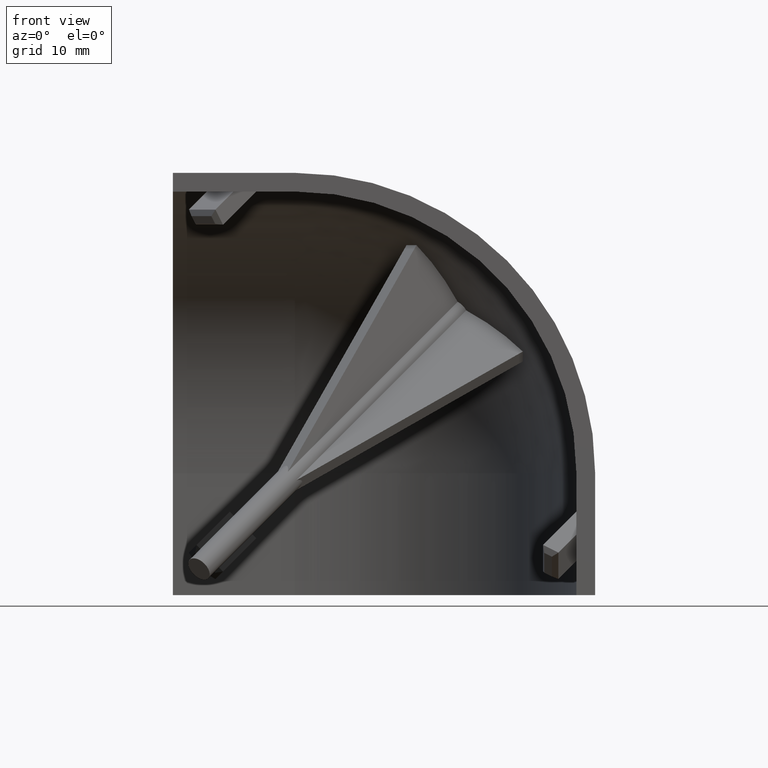
[diagram: clean part render]
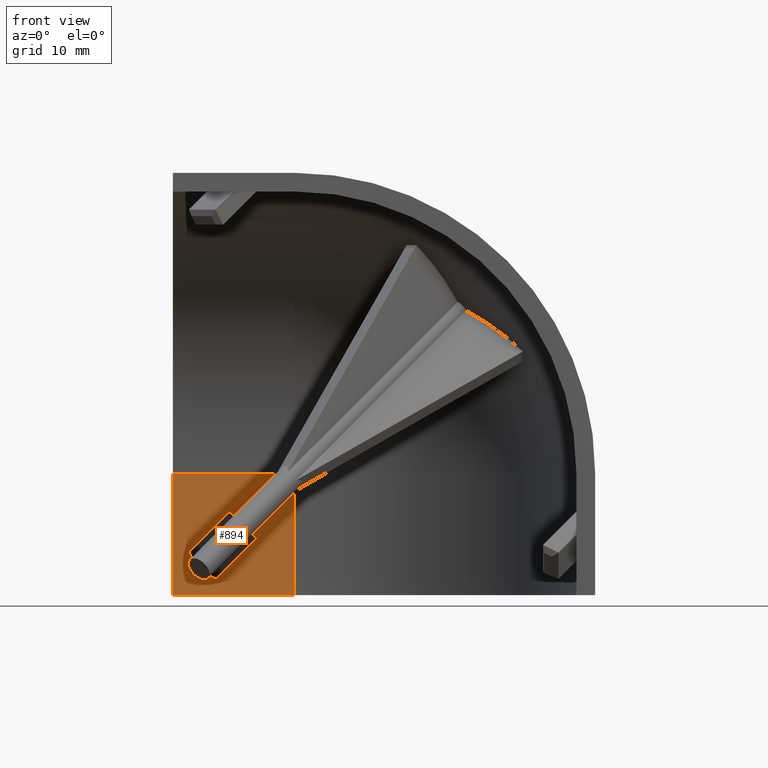
[diagram: same view with one face highlighted and labeled with its STEP entity id]
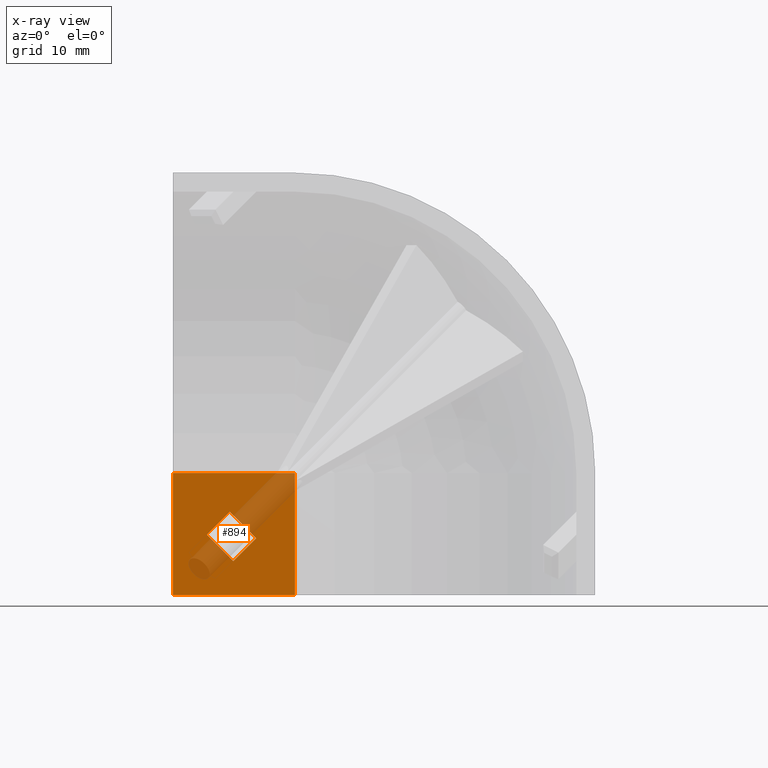
[diagram: x-ray of the same camera — body ghosted, the highlighted face saturated]
A machine part, front view. The second image highlights one B-rep face of the part: STEP entity #894.
The next image is the same camera in x-ray: the body ghosted, the highlighted face saturated — about 20% of this face is hidden behind the body in this view.
In plain terms, the highlighted planar face has unit normal (-0, 1, 0).
Its self-contained STEP definition (entity closure, byte-faithful):
#25=PLANE($,#980);
#69=FACE_BOUND($,#347,.T.);
#80=LINE($,#1355,#179);
#91=LINE($,#1384,#190);
#108=LINE($,#1424,#207);
#110=LINE($,#1429,#209);
#111=LINE($,#1432,#210);
#112=LINE($,#1434,#211);
#113=LINE($,#1436,#212);
#114=LINE($,#1437,#213);
#179=VECTOR($,#1079,12.9999999999998);
#190=VECTOR($,#1106,13.);
#207=VECTOR($,#1145,12.9999999999998);
#209=VECTOR($,#1153,12.9999999999999);
#210=VECTOR($,#1154,3.46410161503992);
#211=VECTOR($,#1155,3.99999999971386);
#212=VECTOR($,#1156,3.46410161498843);
#213=VECTOR($,#1157,3.99999999972648);
#287=FACE_OUTER_BOUND($,#346,.T.);
#346=EDGE_LOOP($,(#720,#721,#722,#723));
#347=EDGE_LOOP($,(#724,#725,#726,#727));
#426=VERTEX_POINT($,#1324);
#438=VERTEX_POINT($,#1352);
#439=VERTEX_POINT($,#1354);
#449=VERTEX_POINT($,#1382);
#462=VERTEX_POINT($,#1430);
#463=VERTEX_POINT($,#1431);
#464=VERTEX_POINT($,#1433);
#465=VERTEX_POINT($,#1435);
#520=EDGE_CURVE($,#438,#439,#80,.T.);
#535=EDGE_CURVE($,#438,#449,#91,.T.);
#556=EDGE_CURVE($,#449,#426,#108,.T.);
#558=EDGE_CURVE($,#439,#426,#110,.T.);
#559=EDGE_CURVE($,#462,#463,#111,.T.);
#560=EDGE_CURVE($,#464,#462,#112,.T.);
#561=EDGE_CURVE($,#465,#464,#113,.T.);
#562=EDGE_CURVE($,#463,#465,#114,.T.);
#720=ORIENTED_EDGE($,*,*,#520,.F.);
#721=ORIENTED_EDGE($,*,*,#535,.T.);
#722=ORIENTED_EDGE($,*,*,#556,.T.);
#723=ORIENTED_EDGE($,*,*,#558,.F.);
#724=ORIENTED_EDGE($,*,*,#559,.F.);
#725=ORIENTED_EDGE($,*,*,#560,.F.);
#726=ORIENTED_EDGE($,*,*,#561,.F.);
#727=ORIENTED_EDGE($,*,*,#562,.F.);
#894=ADVANCED_FACE($,(#287,#69),#25,.F.);
#980=AXIS2_PLACEMENT_3D($,#1428,#1151,#1152);
#1079=DIRECTION($,(0.,1.,0.));
#1106=DIRECTION($,(1.,0.,0.));
#1145=DIRECTION($,(0.,1.,0.));
#1151=DIRECTION('center_axis',(0.,0.,-1.));
#1152=DIRECTION('ref_axis',(-1.,0.,0.));
#1153=DIRECTION($,(1.,0.,0.));
#1154=DIRECTION($,(-0.707106781186548,-0.707106781186548,7.69185074589951E-015));
#1155=DIRECTION($,(-0.707106781186541,0.707106781186554,-2.22044604926627E-015));
#1156=DIRECTION($,(0.707106781186547,0.707106781186548,-7.69185074577494E-015));
#1157=DIRECTION($,(0.707106781186543,-0.707106781186552,2.22044604920326E-015));
#1324=CARTESIAN_POINT('',(12.9999999999999,12.9999999999996,-43.));
#1352=CARTESIAN_POINT('',(0.,-3.05311331771918E-013,-42.9999999999998));
#1354=CARTESIAN_POINT('',(0.,12.9999999999995,-42.9999999999999));
#1355=CARTESIAN_POINT($,(0.,-3.05311331771918E-013,-42.9999999999998));
#1382=CARTESIAN_POINT('',(13.,-1.94289029309402E-013,-42.9999999999999));
#1384=CARTESIAN_POINT($,(-7.105427357601E-015,-6.66133814775094E-013,-42.9999999999996));
#1424=CARTESIAN_POINT($,(13.,-1.94289029309402E-013,-42.9999999999999));
#1428=CARTESIAN_POINT('Origin',(-55.2177507691141,-6.66133814775094E-013,
-42.9999999999996));
#1429=CARTESIAN_POINT($,(0.,12.9999999999992,-42.9999999999997));
#1430=CARTESIAN_POINT('',(6.07063465642669,8.89783703581626,-43.0000000012206));
#1431=CARTESIAN_POINT('',(3.62114491370378,6.44834729311119,-43.0000000011923));
#1432=CARTESIAN_POINT($,(6.07063465740066,8.89783703623107,-43.0000000000212));
#1433=CARTESIAN_POINT('',(8.89906178096568,6.06940991126753,-43.0000000012268));
#1434=CARTESIAN_POINT($,(8.89906178170461,6.06940991215762,-43.0000000000632));
#1435=CARTESIAN_POINT('',(6.4495720382881,3.61992016858994,-43.000000001198));
#1436=CARTESIAN_POINT($,(6.44957203906961,3.61992016929435,-43.0000000000212));
#1437=CARTESIAN_POINT($,(3.62114491419663,6.44834729426191,-43.0000000000063));